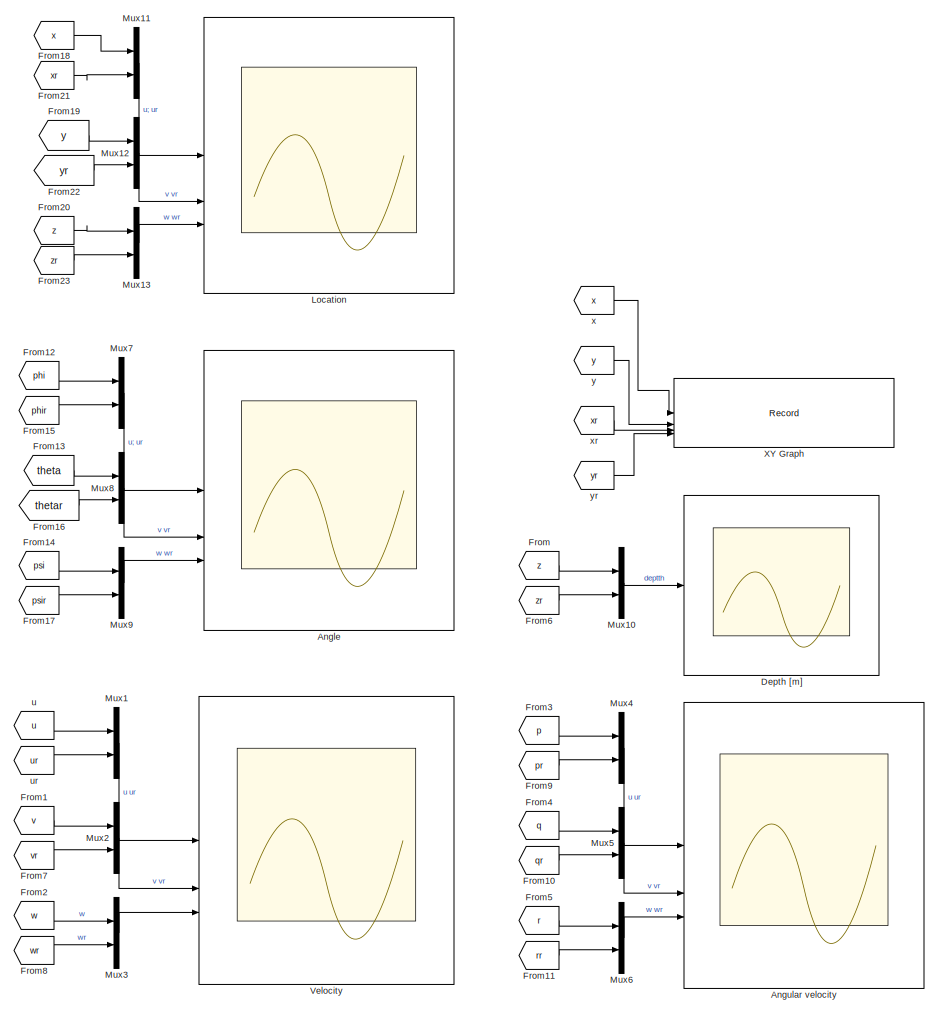
[diagram: root canvas - part 1/2, right side, full height]
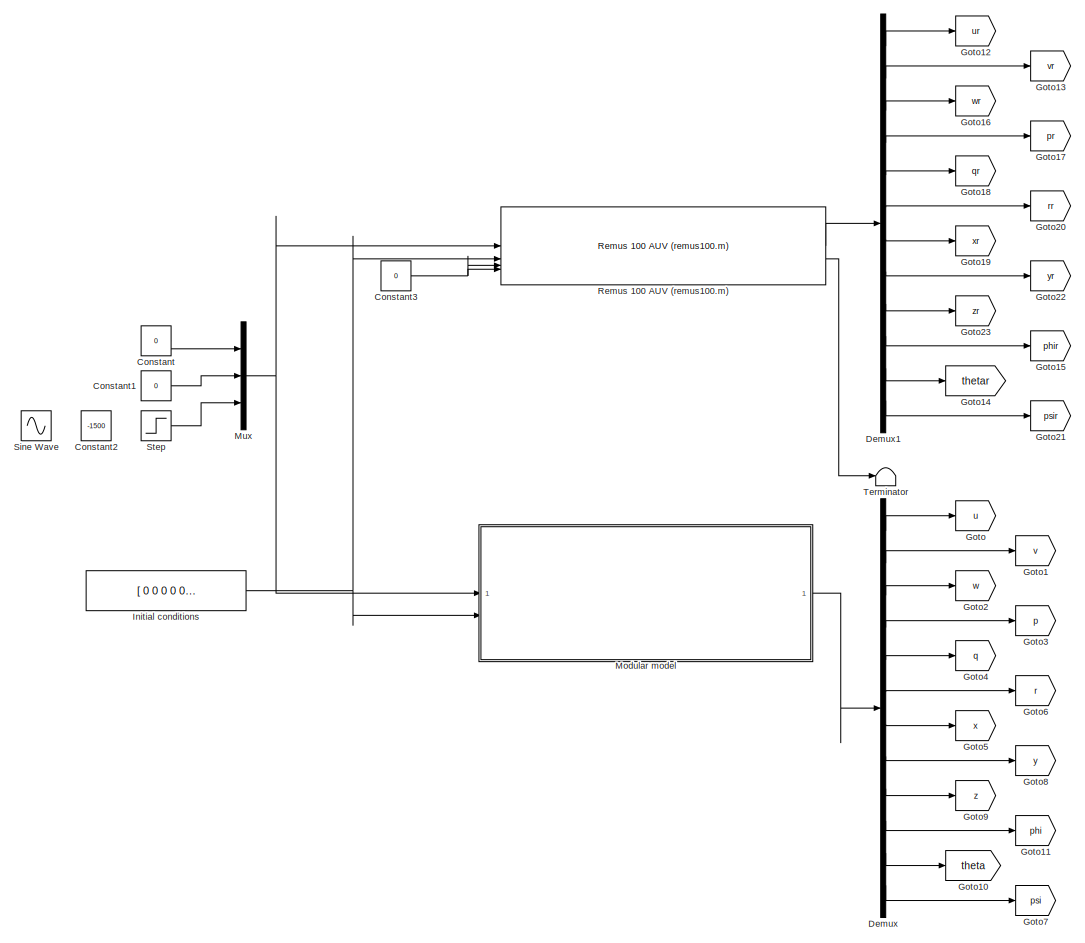
[diagram: root canvas - part 2/2, left side, full height]
MODEL slx_c24a952a27fc
KIND model
CONFIG AbsTol = auto
CONFIG EnableMultiTasking = off
CONFIG FixedStep = auto
CONFIG MaxStep = auto
CONFIG MinStep = auto
CONFIG RelTol = 1e-3
CONFIG SampleTimeConstraint = Unconstrained
CONFIG SolverName = VariableStepAuto
CONFIG StartTime = 0.0
CONFIG StopTime = 50
BLOCK [Scope] Angle
  Floating = off
  NumInputPorts = 3
  ScopeSpecificationString = Simulink.scopes.TimeScopeBlockCfg('CurrentConfiguration', extmgr.ConfigurationSet(extmgr.Configuration('Core','General UI',true),extmgr.Configuration('Core','Source UI',true),extmgr.Configuration('Sources','WiredSimulink',true,'DataLoggingVariableName','ScopeData2'),extmgr.Configuration('Visuals','Time Domain',true,'SerializedDisplays',{struct('MinYLimReal','-0.10342','MaxYLimReal','0.23371','YLab...<+3083ch>
BLOCK [Scope] Angular velocity
  Floating = off
  NumInputPorts = 3
  ScopeSpecificationString = Simulink.scopes.TimeScopeBlockCfg('CurrentConfiguration', extmgr.ConfigurationSet(extmgr.Configuration('Core','General UI',true),extmgr.Configuration('Core','Source UI',true),extmgr.Configuration('Sources','WiredSimulink',true,'DataLoggingVariableName','ScopeData1'),extmgr.Configuration('Visuals','Time Domain',true,'SerializedDisplays',{struct('MinYLimReal','-0.9804','MaxYLimReal','0.44721','YLabe...<+3012ch>
BLOCK [Constant] Constant
  Value = 0
BLOCK [Constant] Constant1
  Value = 0
BLOCK [Constant] Constant2
  Value = -1500
BLOCK [Constant] Constant3
  Value = 0
BLOCK [Demux] Demux
  Outputs = 12
BLOCK [Demux] Demux1
  Outputs = 12
BLOCK [Scope] Depth [m]
  Floating = off
  NumInputPorts = 1
  ScopeSpecificationString = Simulink.scopes.TimeScopeBlockCfg('CurrentConfiguration', extmgr.ConfigurationSet(extmgr.Configuration('Core','General UI',true),extmgr.Configuration('Core','Source UI',true),extmgr.Configuration('Sources','WiredSimulink',true,'DataLoggingVariableName','ScopeData1'),extmgr.Configuration('Visuals','Time Domain',true,'SerializedDisplays',{struct('MinYLimReal','-0.00023','MaxYLimReal','0.00003','YLab...<+1759ch>
BLOCK [From] From
  GotoTag = z
BLOCK [From] From1
  GotoTag = v
BLOCK [From] From10
  GotoTag = qr
BLOCK [From] From11
  GotoTag = rr
BLOCK [From] From12
  GotoTag = phi
BLOCK [From] From13
  GotoTag = theta
BLOCK [From] From14
  GotoTag = psi
BLOCK [From] From15
  GotoTag = phir
BLOCK [From] From16
  GotoTag = thetar
BLOCK [From] From17
  GotoTag = psir
BLOCK [From] From18
  GotoTag = x
BLOCK [From] From19
  GotoTag = y
BLOCK [From] From2
  GotoTag = w
BLOCK [From] From20
  GotoTag = z
BLOCK [From] From21
  GotoTag = xr
BLOCK [From] From22
  GotoTag = yr
BLOCK [From] From23
  GotoTag = zr
BLOCK [From] From3
  GotoTag = p
BLOCK [From] From4
  GotoTag = q
BLOCK [From] From5
  GotoTag = r
BLOCK [From] From6
  GotoTag = zr
BLOCK [From] From7
  GotoTag = vr
BLOCK [From] From8
  GotoTag = wr
BLOCK [From] From9
  GotoTag = pr
BLOCK [Goto] Goto
  GotoTag = u
BLOCK [Goto] Goto1
  GotoTag = v
BLOCK [Goto] Goto10
  GotoTag = theta
BLOCK [Goto] Goto11
  GotoTag = phi
BLOCK [Goto] Goto12
  GotoTag = ur
BLOCK [Goto] Goto13
  GotoTag = vr
BLOCK [Goto] Goto14
  GotoTag = thetar
BLOCK [Goto] Goto15
  GotoTag = phir
BLOCK [Goto] Goto16
  GotoTag = wr
BLOCK [Goto] Goto17
  GotoTag = pr
BLOCK [Goto] Goto18
  GotoTag = qr
BLOCK [Goto] Goto19
  GotoTag = xr
BLOCK [Goto] Goto2
  GotoTag = w
BLOCK [Goto] Goto20
  GotoTag = rr
BLOCK [Goto] Goto21
  GotoTag = psir
BLOCK [Goto] Goto22
  GotoTag = yr
BLOCK [Goto] Goto23
  GotoTag = zr
BLOCK [Goto] Goto3
  GotoTag = p
BLOCK [Goto] Goto4
  GotoTag = q
BLOCK [Goto] Goto5
  GotoTag = x
BLOCK [Goto] Goto6
  GotoTag = r
BLOCK [Goto] Goto7
  GotoTag = psi
BLOCK [Goto] Goto8
  GotoTag = y
BLOCK [Goto] Goto9
  GotoTag = z
BLOCK [Constant] Initial conditions
  Value = [ 0 0 0 0 0 0 0 0  0 0.2 0 0]
BLOCK [Scope] Location
  Floating = off
  NumInputPorts = 3
  ScopeSpecificationString = Simulink.scopes.TimeScopeBlockCfg('CurrentConfiguration', extmgr.ConfigurationSet(extmgr.Configuration('Core','General UI',true),extmgr.Configuration('Core','Source UI',true),extmgr.Configuration('Sources','WiredSimulink',true,'DataLoggingVariableName','ScopeData1'),extmgr.Configuration('Visuals','Time Domain',true,'SerializedDisplays',{struct('MinYLimReal','-0.00001','MaxYLimReal','0.00013','YLab...<+2944ch>
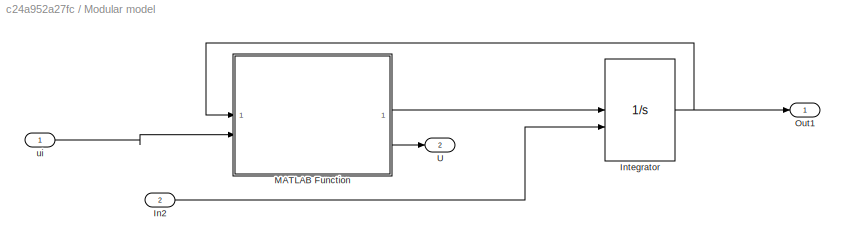
BLOCK [SubSystem] Modular model
BLOCK [Inport] Modular model/In2
  Port = 2
BLOCK [Integrator] Modular model/Integrator
  InitialCondition = zeros(1,12)'
  InitialConditionSource = external
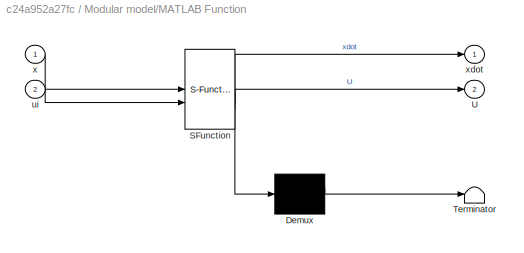
BLOCK [SubSystem] Modular model/MATLAB Function
  ErrorFcn = Stateflow.Translate.translate
  PermitHierarchicalResolution = ExplicitOnly
  SFBlockType = MATLAB Function
  TreatAsAtomicUnit = on
BLOCK [Demux] Modular model/MATLAB Function/ Demux 
  Outputs = 1
BLOCK [S-Function] Modular model/MATLAB Function/ SFunction 
  EnableBusSupport = on
  FunctionName = sf_sfun
  PortCounts = [2 3]
  SFcnIsStateOwnerBlock = off
  SFunctionDeploymentMode = off
  Tag = Stateflow S-Function 2
BLOCK [Terminator] Modular model/MATLAB Function/ Terminator 
BLOCK [Outport] Modular model/MATLAB Function/U
  Port = 2
BLOCK [Inport] Modular model/MATLAB Function/ui
  Port = 2
BLOCK [Inport] Modular model/MATLAB Function/x
BLOCK [Outport] Modular model/MATLAB Function/xdot
BLOCK [Outport] Modular model/Out1
BLOCK [Outport] Modular model/U
  Port = 2
BLOCK [Inport] Modular model/ui
BLOCK [Mux] Mux
  DisplayOption = bar
  Inputs = 3
BLOCK [Mux] Mux1
  DisplayOption = bar
  Inputs = 2
BLOCK [Mux] Mux10
  DisplayOption = bar
  Inputs = 2
BLOCK [Mux] Mux11
  DisplayOption = bar
  Inputs = 2
BLOCK [Mux] Mux12
  DisplayOption = bar
  Inputs = 2
BLOCK [Mux] Mux13
  DisplayOption = bar
  Inputs = 2
BLOCK [Mux] Mux2
  DisplayOption = bar
  Inputs = 2
BLOCK [Mux] Mux3
  DisplayOption = bar
  Inputs = 2
BLOCK [Mux] Mux4
  DisplayOption = bar
  Inputs = 2
BLOCK [Mux] Mux5
  DisplayOption = bar
  Inputs = 2
BLOCK [Mux] Mux6
  DisplayOption = bar
  Inputs = 2
BLOCK [Mux] Mux7
  DisplayOption = bar
  Inputs = 2
BLOCK [Mux] Mux8
  DisplayOption = bar
  Inputs = 2
BLOCK [Mux] Mux9
  DisplayOption = bar
  Inputs = 2
BLOCK [Reference] Remus 100 AUV (remus100.m)   REF=mssSimulink/Marine craft models/Remus 100 AUV (remus100.m)
  SourceBlock = mssSimulink/Marine craft models/Remus 100 AUV (remus100.m)
BLOCK [Sin] Sine Wave
  Amplitude = 1500
  SampleTime = 0
BLOCK [Step] Step
  After = 0
  SampleTime = 0
  Time = 2
BLOCK [Terminator] Terminator
BLOCK [Scope] Velocity
  Floating = off
  NumInputPorts = 3
  ScopeSpecificationString = Simulink.scopes.TimeScopeBlockCfg('CurrentConfiguration', extmgr.ConfigurationSet(extmgr.Configuration('Core','General UI',true),extmgr.Configuration('Core','Source UI',true),extmgr.Configuration('Sources','WiredSimulink',true,'DataLoggingVariableName','ScopeData1'),extmgr.Configuration('Visuals','Time Domain',true,'SerializedDisplays',{struct('MinYLimReal','-0.0000008','MaxYLimReal','0.000007','Y...<+3024ch>
BLOCK [Record] XY Graph
  CompatibilityTag = XY
  FileSettingsInternal = {"entries":[{"content":{"excelSettings":{"content":{},"type":"Streamout.ExcelSettings"}},"type":"Streamout.FileSettingStorage","uuid":""}],"packageUris":["http:\/\/schema.mathworks.com\/mf0\/streamout_blocks\/R2020a"],"version":"1.0"}
  Layout = [1 1]
  SignalsInternal = {"entries":[{"content":{"signals":[{"content":{"blockPath":[],"dimensions":[1],"domain":"","lineColor":"#a2142f","plots":[1],"port":1,"sid":[""],"signalID":9038,"signalName":"x"},"type":"RecordBlkView.Signal","uuid":""},{"content":{"blockPath":[],"dimensions":[1],"domain":"","lineColor":"#139fff","plots":[1],"port":2,"sid":[""],"signalID":9042,"signalName":"y"},"type":"RecordBlkView.Signal","uuid"...<+522ch>
  VisualizationBindings = {"xyplotplugin":{"info":[{"series":[{"bindingParametersList":[{"parameter":"X-Axis","signalID":9046,"signalName":"xr"},{"parameter":"Y-Axis","signalID":9050,"signalName":"yr"}],"seriesID":47107},{"bindingParametersList":[{"parameter":"X-Axis","signalID":9038,"signalName":"x"},{"parameter":"Y-Axis","signalID":9042,"signalName":"y"}],"seriesID":22373}],"subplotID":1}]}}
BLOCK [From] u
  GotoTag = u
BLOCK [From] ur
  GotoTag = ur
BLOCK [From] x
  GotoTag = x
BLOCK [From] xr
  GotoTag = xr
BLOCK [From] y
  GotoTag = y
BLOCK [From] yr
  GotoTag = yr
LINE Constant1:1 -> Mux:2
NET Constant3:1 -> Remus 100 AUV (remus100.m) :3, Remus 100 AUV (remus100.m) :4
LINE Constant:1 -> Mux:1
LINE Demux1:1 -> Goto12:1
LINE Demux1:10 -> Goto15:1
LINE Demux1:11 -> Goto14:1
LINE Demux1:12 -> Goto21:1
LINE Demux1:2 -> Goto13:1
LINE Demux1:3 -> Goto16:1
LINE Demux1:4 -> Goto17:1
LINE Demux1:5 -> Goto18:1
LINE Demux1:6 -> Goto20:1
LINE Demux1:7 -> Goto19:1
LINE Demux1:8 -> Goto22:1
LINE Demux1:9 -> Goto23:1
LINE Demux:1 -> Goto:1
LINE Demux:10 -> Goto11:1
LINE Demux:11 -> Goto10:1
LINE Demux:12 -> Goto7:1
LINE Demux:2 -> Goto1:1
LINE Demux:3 -> Goto2:1
LINE Demux:4 -> Goto3:1
LINE Demux:5 -> Goto4:1
LINE Demux:6 -> Goto6:1
LINE Demux:7 -> Goto5:1
LINE Demux:8 -> Goto8:1
LINE Demux:9 -> Goto9:1
LINE From10:1 -> Mux5:2
LINE From11:1 -> Mux6:2
LINE From12:1 -> Mux7:1
LINE From13:1 -> Mux8:1
LINE From14:1 -> Mux9:1
LINE From15:1 -> Mux7:2
LINE From16:1 -> Mux8:2
LINE From17:1 -> Mux9:2
LINE From18:1 -> Mux11:1
LINE From19:1 -> Mux12:1
LINE From1:1 -> Mux2:1
LINE From20:1 -> Mux13:1
LINE From21:1 -> Mux11:2
LINE From22:1 -> Mux12:2
LINE From23:1 -> Mux13:2
LINE From2:1 -> Mux3:1
LINE From3:1 -> Mux4:1
LINE From4:1 -> Mux5:1
LINE From5:1 -> Mux6:1
LINE From6:1 -> Mux10:2
LINE From7:1 -> Mux2:2
LINE From8:1 -> Mux3:2
LINE From9:1 -> Mux4:2
LINE From:1 -> Mux10:1
NET Initial conditions:1 -> Modular model:2, Remus 100 AUV (remus100.m) :2
LINE Modular model/In2:1 -> Modular model/Integrator:2
NET Modular model/Integrator:1 -> Modular model/MATLAB Function:1, Modular model/Out1:1
LINE Modular model/MATLAB Function:1 -> Modular model/Integrator:1
LINE Modular model/MATLAB Function:2 -> Modular model/U:1
LINE Modular model/ui:1 -> Modular model/MATLAB Function:2
LINE Modular model:1 -> Demux:1
LINE Mux10:1 -> Depth [m]:1
LINE Mux11:1 -> Location:1
LINE Mux12:1 -> Location:2
LINE Mux13:1 -> Location:3
LINE Mux1:1 -> Velocity:1
LINE Mux2:1 -> Velocity:2
LINE Mux3:1 -> Velocity:3
LINE Mux4:1 -> Angular velocity:1
LINE Mux5:1 -> Angular velocity:2
LINE Mux6:1 -> Angular velocity:3
LINE Mux7:1 -> Angle:1
LINE Mux8:1 -> Angle:2
LINE Mux9:1 -> Angle:3
NET Mux:1 -> Modular model:1, Remus 100 AUV (remus100.m) :1
LINE Remus 100 AUV (remus100.m) :1 -> Demux1:1
LINE Remus 100 AUV (remus100.m) :2 -> Terminator:1
LINE Step:1 -> Mux:3
LINE u:1 -> Mux1:1
LINE ur:1 -> Mux1:2
LINE x:1 -> XY Graph:1
LINE xr:1 -> XY Graph:3
LINE y:1 -> XY Graph:2
LINE yr:1 -> XY Graph:4
note: NET lines group one-source signal fan-out (src -> all destinations, sorted); 1:1 wires keep LINE
CHART Modular model/MATLAB Function states=1 transitions=1
  STATE_LABEL 'eML_blk_kernel()'
  STATE_LABEL 'SCRIPT:\nfunction [xdot,U] = fcn(x,ui)\n\n[xdot,U] = main_Modular(x,ui);\n'
CHART  states=0 transitions=0
